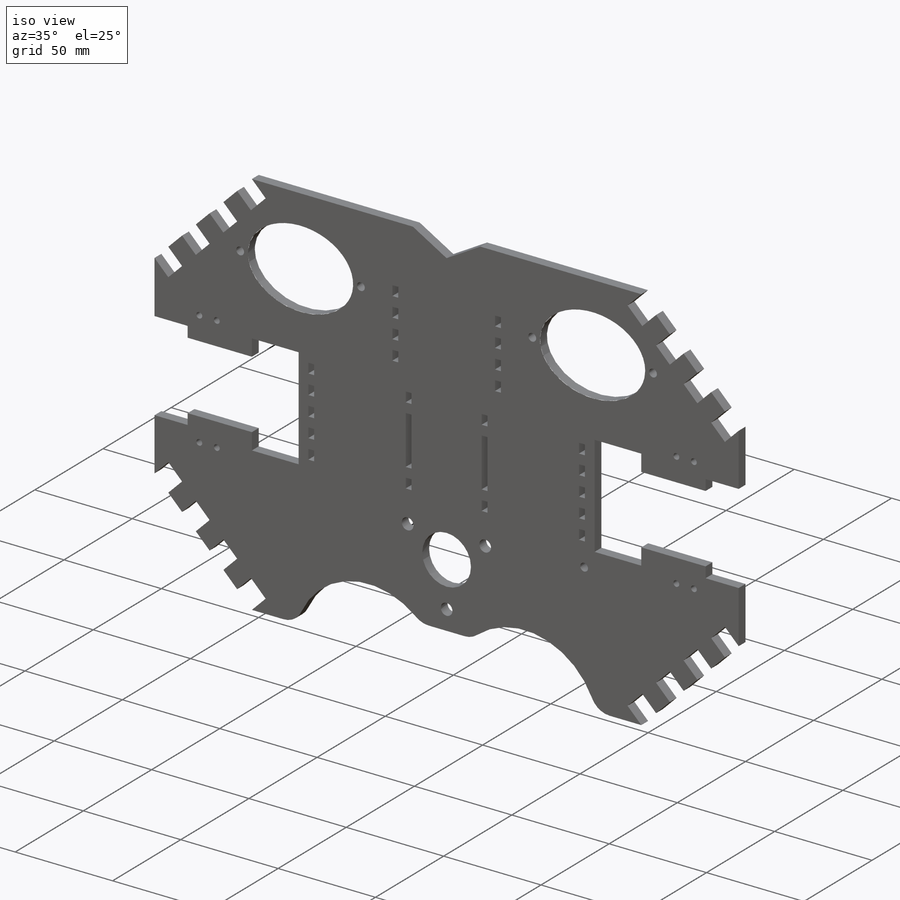
[diagram: iso view]
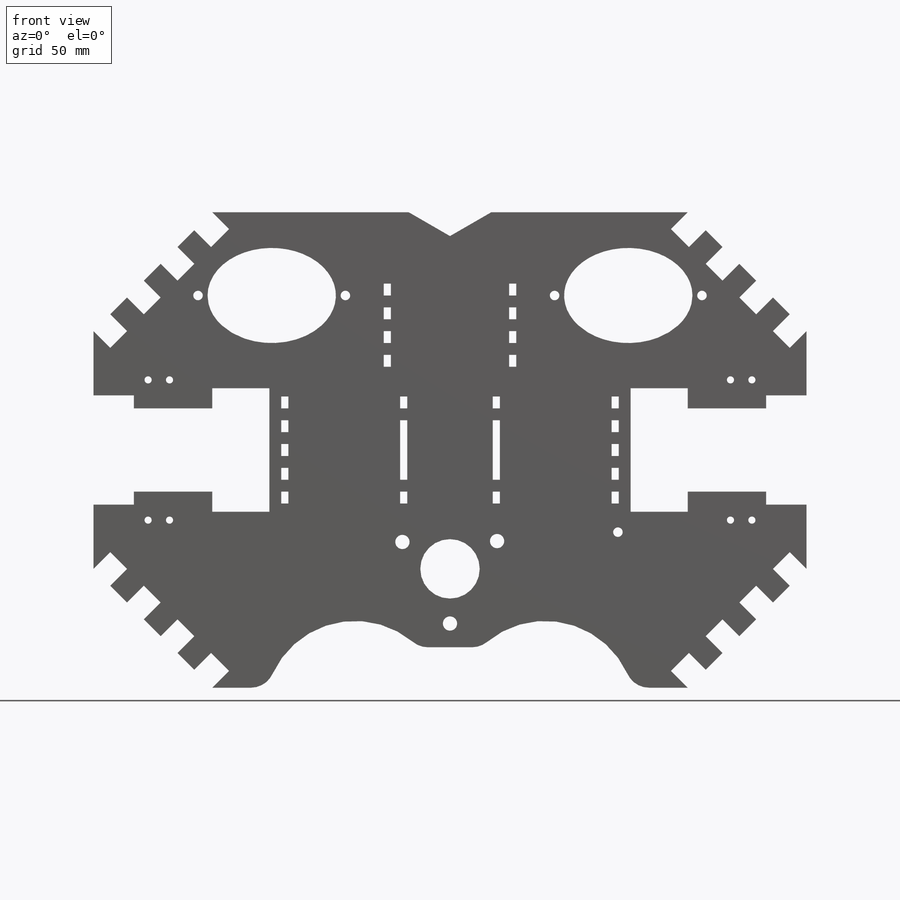
[diagram: front view]
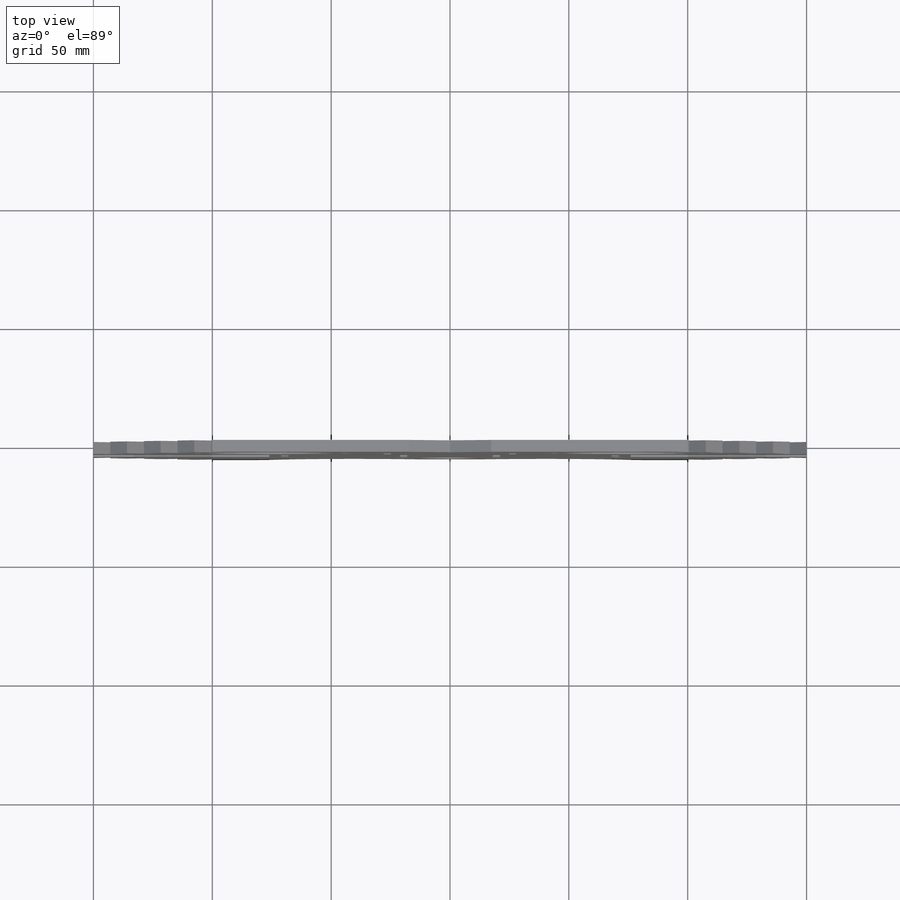
[diagram: top view]
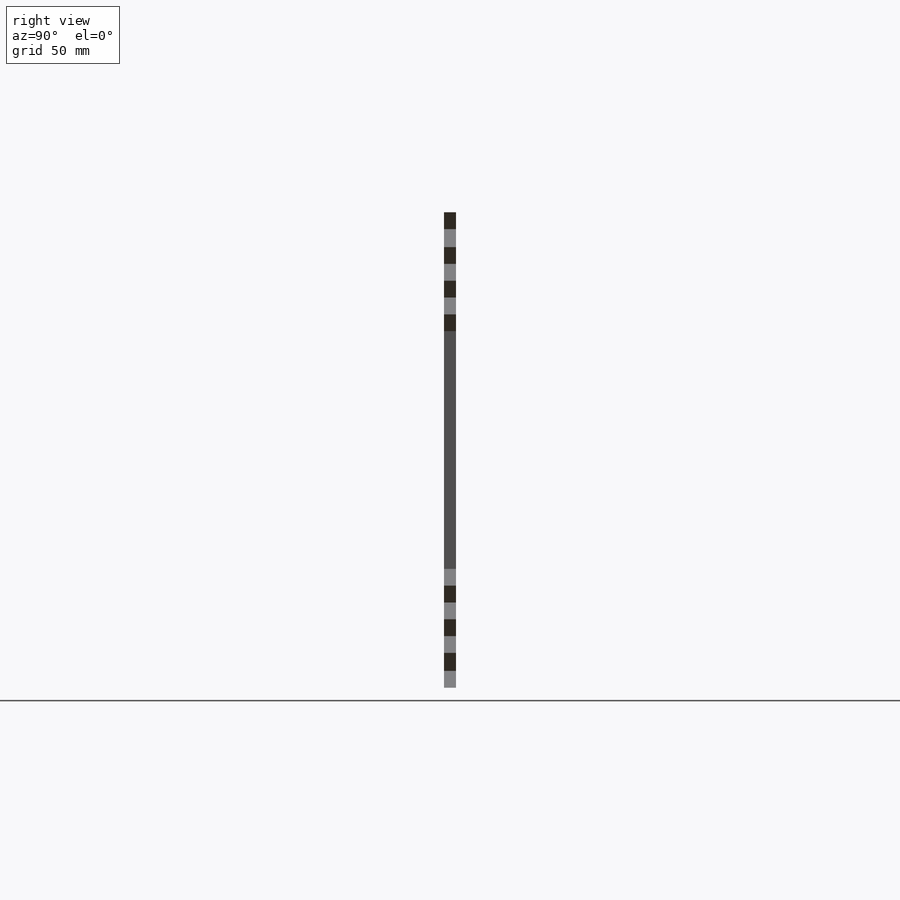
[diagram: right view]
SOLIDWORKS PART (.sldprt)
format: sldprt  version: not decoded by parser v0  size: 846,848 bytes
history: native  units: mm
features: sketch x10, cut_extrude x7, plane x4, fillet x2, material x1, extrude x1 (+10 scaffold rows collapsed)
feature tree (35):
  scaffold x10  (default folders/planes/origin — collapsed)
  material  "Matériau <non spécifié>"
  plane  "Plan de face"
  plane  "Plan de dessus"
  plane  "Plan de droite"
  sketch  "Esquisse1"  dims[c1.D29=76.2mm c1.D31=76.2mm c1.D1=300.0mm c1.D2=200.0mm c1.D3=150.0mm c1.D4=100.0mm c1.D5=52.0mm c1.D6=24.0mm c1.D7=18.0mm c1.D8=5.0mm c1.D9=3.0mm c1.D10=17.5mm c1.D11=55.0mm c1.D12=26.0mm c1.D13=17.0mm c1.D14=46.0mm c1.D15=0.0mm c1.D16=23.0mm c1.D17=35.0mm c1.D18=33.0mm c1.D19=17.5mm c1.D20=52.0mm c1.D22=3.0mm c1.D23=5.0mm c1.D24=5.0mm c1.D25=0.0mm c1.D26=47.0mm c1.D27=47.0mm c1.D28=47.0mm c2.D29=47.0mm c2.D30=5.0mm c2.D31=5.0mm c2.D19=47.0mm c2.D20=0.0mm c2.D21=5.0mm c2.D22=3.0mm c2.D24=5.0mm c2.D25=5.0mm c2.D26=3.0mm c2.D27=18.0mm c2.D28=113.0mm c3.D30=20.0mm c3.D31=~77.567988mm c3.D28=20.0mm c4.D30=~189.84045mm c4.D28=10.0mm c5.D30=80.0mm c5.D31=3.0mm c5.D23=~4.475907deg c6.D23=5.0]
  sketch  "Esquisse2"  dims[c1.D6=3.0mm c1.D9=3.0mm c1.D12=4.0mm c1.D13=4.0mm c1.D1=75.0mm c1.D2=65.0mm c1.D3=40.0mm c1.D4=54.0mm c1.D5=12.0mm c1.D7=6.0mm c1.D8=9.0mm c1.D10=12.0mm c1.D11=31.0mm c1.D14=31.0mm c1.D15=65.0mm c2.D1=~43.855762deg]
  extrude  "Boss.-Extru.1"  Depth=5mm
  cut_extrude  "Enlèv. mat.-Extru.4"  Depth=5mm
  sketch  "Esquisse5"  dims[c1.D2=25.0mm c1.D3=6.0mm c1.D4=3.0mm c1.D5=6.0mm c2.D4=6.0mm c2.D10=25.0mm c2.D6=6.0mm c2.D8=6.0mm c2.D9=6.0mm c2.D1=65.0mm c3.D6=23.0mm c3.D7=0.0mm c3.D8=23.0mm c3.D9=23.0mm c3.D10=65.0mm c3.D1=~79.64483mm c4.D10=~17.734964mm c4.D11=23.0mm c5.D10=23.0mm c5.D8=~19.057709mm c5.D11=~17.734964mm c5.D1=23.0mm c5.D4=50.0mm c6.D10=65.0mm c6.D1=23.0mm c6.D3=23.0mm c6.D5=23.0mm c7.D10=39.84mm c8.D10=~129.548543deg c8.D8=120.0deg c8.D11=~160.63184deg]
  cut_extrude  "Enlèv. mat.-Extru.31"  Depth=5mm
  sketch  "Esquisse6"
  plane  "Plan1"
  fillet  "Congé7"  Radius=10mm
  sketch  "Esquisse10"  dims[c1.D1=90.0mm c1.D2=0.0mm c1.D3=40.0mm c1.D4=20.0mm c1.D5=20.0mm c2.D3=~17.320508mm c2.D6=~34.641016mm]
  sketch  "Esquisse12"
  cut_extrude  "Enlèv. mat.-Extru.33"  Depth=10mm
  sketch  "Esquisse19"  dims[c1.D1=50.0mm c1.D2=50.0mm c1.D3=10.0mm c1.D4=10.0mm c1.D5=10.0mm c2.D5=~8.00785deg c3.D5=10.0mm c3.D6=10.0mm c3.D7=10.0mm c3.D8=~13.352092mm c4.D5=10.0mm c4.D6=10.0mm c4.D8=10.0mm c4.D9=10.0mm c4.D10=10.0mm c4.D11=10.0mm c4.D12=10.0mm c4.D13=~10.710678mm]
  cut_extrude  "Enlèv. mat.-Extru.36"  Depth=10mm
  sketch  "Esquisse20"  dims[D1=10.0mm]
  cut_extrude  "Enlèv. mat.-Extru.37"  Depth=10mm
  fillet  "Congé8"  Radius=10mm
  sketch  "Esquisse24"  dims[D1=30.0mm D2=3.0mm D3=5.0mm D4=24.85mm D5=4.0]
  cut_extrude  "Enlèv. mat.-Extru.40"  Depth=10mm
  sketch  "Esquisse25"  dims[D1=4.0mm]
  cut_extrude  "Enlèv. mat.-Extru.41"  Depth=10mm
decode coverage: 18 of 20 modeling features carry decoded parameters
note: ~ marks probable driven/reference dimensions
note: suppression state not decoded; provenance and decode notes live in map.json
